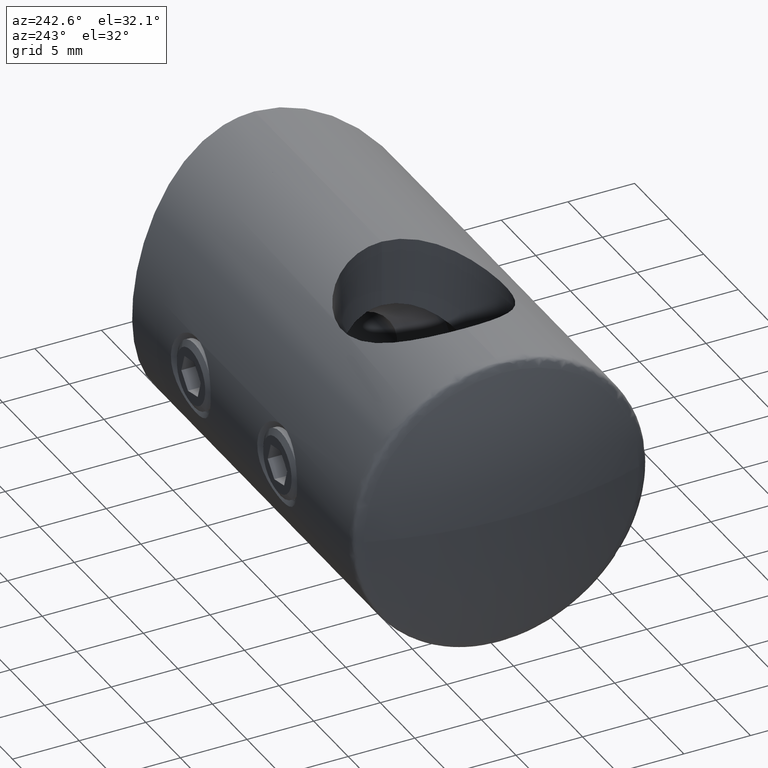
[diagram: clean part render]
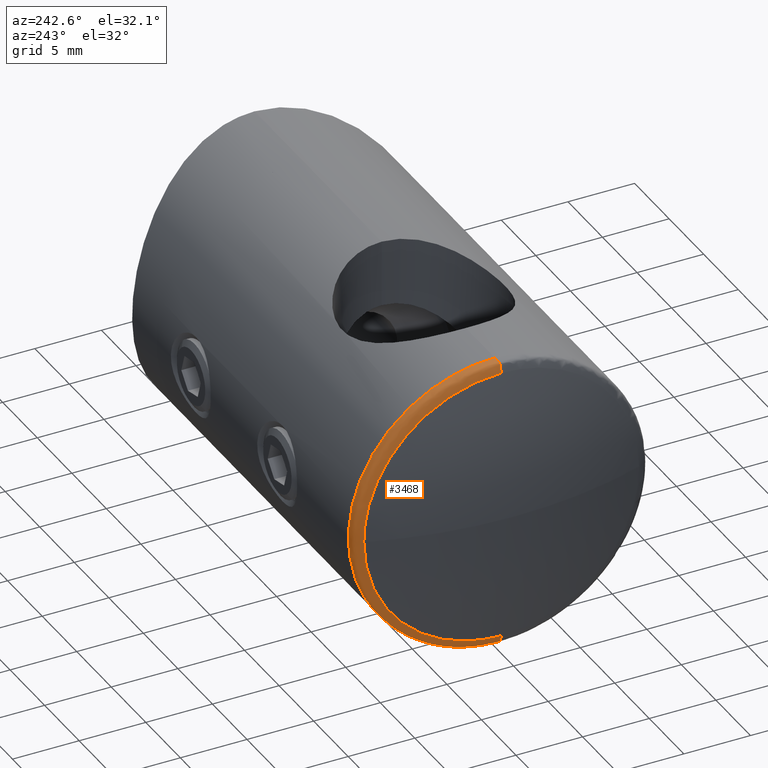
[diagram: same view with one face highlighted and labeled with its STEP entity id]
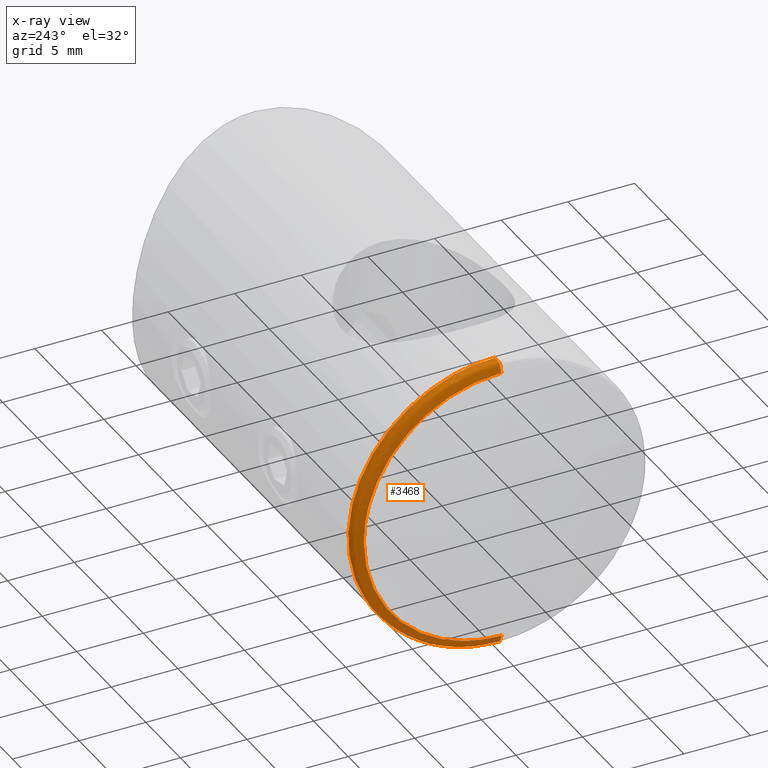
[diagram: x-ray of the same camera — body ghosted, the highlighted face saturated]
A machine part, auxiliary view. The second image highlights one B-rep face of the part: STEP entity #3468.
The next image is the same camera in x-ray: the body ghosted, the highlighted face saturated — about 0% of this face is hidden behind the body in this view.
In plain terms, the highlighted face is a freeform B-spline surface patch.
Its self-contained STEP definition (entity closure, byte-faithful):
#50 =( BOUNDED_CURVE ( )  B_SPLINE_CURVE ( 2, ( #1535, #1948, #4927 ),
 .UNSPECIFIED., .F., .F. ) 
 B_SPLINE_CURVE_WITH_KNOTS ( ( 3, 3 ),
 ( 0.0000000000000000000, 1.000000000000000000 ),
 .UNSPECIFIED. ) 
 CURVE ( )  GEOMETRIC_REPRESENTATION_ITEM ( )  RATIONAL_B_SPLINE_CURVE ( ( 1.000000000000000000, 4.078263282937810700, 1.000000000000000000 ) ) 
 REPRESENTATION_ITEM ( '' )  );
#104 = CARTESIAN_POINT ( 'NONE',  ( 2.700700533988579500, 8.796335264683126100, -6.760013921420911800 ) ) ;
#158 = CARTESIAN_POINT ( 'NONE',  ( 2.700700533988579500, -1.439896630495491700, 10.99999999999999600 ) ) ;
#198 = CARTESIAN_POINT ( 'NONE',  ( 1.756922039244524600, -5.202675414969234200, -9.026718888821436700 ) ) ;
#219 = CARTESIAN_POINT ( 'NONE',  ( 1.756922039244400300, 10.33057851239669000, 1.352269562824467400 ) ) ;
#238 = CARTESIAN_POINT ( 'NONE',  ( 1.991401168373105400, -2.879226730172406200, -10.71369944243128300 ) ) ;
#257 = CARTESIAN_POINT ( 'NONE',  ( 1.991401168373390300, 1.439896630495494100, 11.00000000000000000 ) ) ;
#272 = CARTESIAN_POINT ( 'NONE',  ( 1.991401168373390300, 11.00000000000000000, 1.439896630495493200 ) ) ;
#318 = CARTESIAN_POINT ( 'NONE',  ( 1.756922039244400500, 1.581413738568378900E-015, -10.33057851239669000 ) ) ;
#366 = CARTESIAN_POINT ( 'NONE',  ( 2.700700533988579500, 6.735557395310440100E-016, -10.99999999999999600 ) ) ;
#371 = CARTESIAN_POINT ( 'NONE',  ( 2.700700533988579500, 10.99999999999999800, 1.439896632895321800 ) ) ;
#548 = CARTESIAN_POINT ( 'NONE',  ( 2.700700533988579500, 5.539808781862499900, 9.611650272815303700 ) ) ;
#555 = CARTESIAN_POINT ( 'NONE',  ( 1.756922039244400500, 5.202675417054750900, -9.026718887957201800 ) ) ;
#568 = CARTESIAN_POINT ( 'NONE',  ( 2.700700533988579500, -9.611650272813880800, 5.539808781865938100 ) ) ;
#586 = CARTESIAN_POINT ( 'NONE',  ( 1.991401168372537900, -8.796335264684824300, -6.760013921418077700 ) ) ;
#598 = CARTESIAN_POINT ( 'NONE',  ( 1.756922039244400500, 6.348623140236719000, 8.261021099154751500 ) ) ;
#626 = CARTESIAN_POINT ( 'NONE',  ( 1.991401168373390300, 1.439896630495578700, -11.00000000000000000 ) ) ;
#646 = CARTESIAN_POINT ( 'NONE',  ( 1.756922039244400300, 1.352269562824468800, 10.33057851239669000 ) ) ;
#661 = CARTESIAN_POINT ( 'NONE',  ( 1.756922039244196200, 2.704007071909384900, -10.06170120438812000 ) ) ;
#678 = CARTESIAN_POINT ( 'NONE',  ( 1.756922039244524600, -9.026718888821434900, -5.202675414969237800 ) ) ;
#695 = CARTESIAN_POINT ( 'NONE',  ( 1.756922039244588600, 9.026718888820232300, 5.202675414972618200 ) ) ;
#699 =( BOUNDED_SURFACE ( )  B_SPLINE_SURFACE ( 2, 3, ( 
 ( #1455, #158, #2266, #1880, #1839, #4865, #568, #3555, #3514, #999, #4367, #3536, #3108, #2249, #981, #3164, #4444, #3594, #2325, #1037, #4405, #104, #3982, #1821, #4018, #1473, #1435, #3089, #5244, #960, #548, #4842, #4802, #3942 ),
 ( #1396, #3961, #5221, #4824, #2676, #2288, #1414, #2696, #5263, #3147, #4386, #2717, #586, #3182, #4059, #238, #3653, #626, #3613, #2385, #4038, #2402, #5359, #4953, #5376, #272, #1126, #2808, #3675, #3202, #2824, #3694, #257, #4504 ),
 ( #2773, #1074, #4485, #3240, #1054, #2791, #3223, #4116, #4540, #1991, #1958, #678, #3257, #1565, #198, #4937, #4971, #1110, #661, #2345, #1512, #4098, #1939, #5303, #1544, #219, #4522, #695, #1492, #3633, #2754, #4467, #646, #4918 ) ),
 .UNSPECIFIED., .F., .T., .F. ) 
 B_SPLINE_SURFACE_WITH_KNOTS ( ( 3, 3 ),
 ( 4, 2, 2, 2, 2, 2, 2, 2, 2, 2, 2, 2, 2, 2, 2, 2, 4 ),
 ( 0.0000000000000000000, 1.000000000000000000 ),
 ( -3.141592653589793100, -2.748893571891069000, -2.356194490192344800, -1.963495408493620700, -1.570796326794896600, -1.178097245096172400, -0.7853981633974482800, -0.3926990816987241400, 0.0000000000000000000, 0.3926990816987241400, 0.7853981633974482800, 1.178097245096172400, 1.570796326794896600, 1.963495408493620700, 2.356194490192344800, 2.748893571891069000, 3.141592653589793100 ),
 .UNSPECIFIED. ) 
 GEOMETRIC_REPRESENTATION_ITEM ( )  RATIONAL_B_SPLINE_SURFACE ( (
 ( 1.000000000000000000, 1.000000000000000000, 1.000000000000000000, 1.000000000000000000, 1.000000000000000000, 1.000000000000000000, 1.000000000000000000, 1.000000000000000000, 1.000000000000000000, 1.000000000000000000, 1.000000000000000000, 1.000000000000000000, 1.000000000000000000, 1.000000000000000000, 1.000000000000000000, 1.000000000000000000, 1.000000000000000000, 1.000000000000000000, 1.000000000000000000, 1.000000000000000000, 1.000000000000000000, 1.000000000000000000, 1.000000000000000000, 1.000000000000000000, 1.000000000000000000, 1.000000000000000000, 1.000000000000000000, 1.000000000000000000, 1.000000000000000000, 1.000000000000000000, 1.000000000000000000, 1.000000000000000000, 1.000000000000000000, 1.000000000000000000),
 ( 4.078263282937810700, 4.078263282937810700, 4.078263282937807200, 4.078263282937807200, 4.078263282937810700, 4.078263282937810700, 4.078263282937807200, 4.078263282937807200, 4.078263282937810700, 4.078263282937810700, 4.078263282937810700, 4.078263282937810700, 4.078263282937810700, 4.078263282937810700, 4.078263282937809800, 4.078263282937809800, 4.078263282937810700, 4.078263282937810700, 4.078263282937808900, 4.078263282937808900, 4.078263282937810700, 4.078263282937810700, 4.078263282937809800, 4.078263282937809800, 4.078263282937810700, 4.078263282937810700, 4.078263282937810700, 4.078263282937810700, 4.078263282937809800, 4.078263282937809800, 4.078263282937808000, 4.078263282937808000, 4.078263282937810700, 4.078263282937810700),
 ( 1.000000000000000000, 1.000000000000000000, 1.000000000000000000, 1.000000000000000000, 1.000000000000000000, 1.000000000000000000, 1.000000000000000000, 1.000000000000000000, 1.000000000000000000, 1.000000000000000000, 1.000000000000000000, 1.000000000000000000, 1.000000000000000000, 1.000000000000000000, 1.000000000000000000, 1.000000000000000000, 1.000000000000000000, 1.000000000000000000, 1.000000000000000000, 1.000000000000000000, 1.000000000000000000, 1.000000000000000000, 1.000000000000000000, 1.000000000000000000, 1.000000000000000000, 1.000000000000000000, 1.000000000000000000, 1.000000000000000000, 1.000000000000000000, 1.000000000000000000, 1.000000000000000000, 1.000000000000000000, 1.000000000000000000, 1.000000000000000000) ) ) 
 REPRESENTATION_ITEM ( '' )  SURFACE ( )  );
#721 = ORIENTED_EDGE ( 'NONE', *, *, #5126, .F. ) ;
#762 = CARTESIAN_POINT ( 'NONE',  ( 2.700700533988579900, 10.71369944335146900, 2.879226727952081800 ) ) ;
#860 =( BOUNDED_CURVE ( )  B_SPLINE_CURVE ( 2, ( #3301, #4207, #1193 ),
 .UNSPECIFIED., .F., .T. ) 
 B_SPLINE_CURVE_WITH_KNOTS ( ( 3, 3 ),
 ( 0.0000000000000000000, 1.000000000000000000 ),
 .UNSPECIFIED. ) 
 CURVE ( )  GEOMETRIC_REPRESENTATION_ITEM ( )  RATIONAL_B_SPLINE_CURVE ( ( 1.000000000000000000, 4.078263282937810700, 1.000000000000000000 ) ) 
 REPRESENTATION_ITEM ( '' )  );
#960 = CARTESIAN_POINT ( 'NONE',  ( 2.700700533988579500, 6.760013921421462500, 8.796335264682577200 ) ) ;
#981 = CARTESIAN_POINT ( 'NONE',  ( 2.700700533988579500, -5.539808781859387700, -9.611650272816595100 ) ) ;
#992 = CARTESIAN_POINT ( 'NONE',  ( 1.756922039244400500, 10.06170120525118800, 2.704007069827278500 ) ) ;
#999 = CARTESIAN_POINT ( 'NONE',  ( 2.700700533988579500, -10.99999999999999500, -1.439896630498698200 ) ) ;
#1031 = CARTESIAN_POINT ( 'NONE',  ( 1.756922039244400700, 2.704007069827276200, 10.06170120525118800 ) ) ;
#1037 = CARTESIAN_POINT ( 'NONE',  ( 2.700700533988579500, 5.539808781863098600, -9.611650272815058600 ) ) ;
#1049 = CARTESIAN_POINT ( 'NONE',  ( 1.756922039244400500, 9.026718887957201800, 5.202675417054750000 ) ) ;
#1054 = CARTESIAN_POINT ( 'NONE',  ( 1.756922039244259000, -6.348623141829968100, 8.261021097560933100 ) ) ;
#1074 = CARTESIAN_POINT ( 'NONE',  ( 1.756922039244400300, -1.352269562824466100, 10.33057851239669000 ) ) ;
#1110 = CARTESIAN_POINT ( 'NONE',  ( 1.756922039244400300, 1.352269562824548000, -10.33057851239669000 ) ) ;
#1126 = CARTESIAN_POINT ( 'NONE',  ( 1.991401168373389900, 10.71369944243469200, 2.879226730169576000 ) ) ;
#1149 = ORIENTED_EDGE ( 'NONE', *, *, #1737, .F. ) ;
#1158 = CARTESIAN_POINT ( 'NONE',  ( 2.700700533988579900, 5.539808784079892400, 9.611650271896836600 ) ) ;
#1193 = CARTESIAN_POINT ( 'NONE',  ( 1.756922039244400500, 1.581413738568378900E-015, -10.33057851239669000 ) ) ;
#1232 = CARTESIAN_POINT ( 'NONE',  ( 2.700700533988579000, 8.796335266379978500, -6.760013919724060300 ) ) ;
#1396 = CARTESIAN_POINT ( 'NONE',  ( 1.991401168373390300, 1.347111479062088200E-015, 11.00000000000000000 ) ) ;
#1414 = CARTESIAN_POINT ( 'NONE',  ( 1.991401168373105000, -9.611650272813602000, 5.539808781865822600 ) ) ;
#1435 = CARTESIAN_POINT ( 'NONE',  ( 2.700700533988579500, 10.71369944243304000, 2.879226730169361000 ) ) ;
#1455 = CARTESIAN_POINT ( 'NONE',  ( 2.700700533988579500, 1.347111479062087800E-015, 10.99999999999999600 ) ) ;
#1473 = CARTESIAN_POINT ( 'NONE',  ( 2.700700533988579500, 10.99999999999999600, 1.439896630495493000 ) ) ;
#1476 = EDGE_CURVE ( 'NONE', #5192, #4718, #860, .T. ) ;
#1492 = CARTESIAN_POINT ( 'NONE',  ( 1.756922039244259000, 8.261021097560366400, 6.348623141830538300 ) ) ;
#1512 = CARTESIAN_POINT ( 'NONE',  ( 1.756922039244400000, 6.348623141830111100, -8.261021097561361200 ) ) ;
#1535 = CARTESIAN_POINT ( 'NONE',  ( 2.700700533988579500, -6.735557395310441000E-016, 10.99999999999999600 ) ) ;
#1544 = CARTESIAN_POINT ( 'NONE',  ( 1.756922039244400300, 10.33057851239669000, -1.352269562824468800 ) ) ;
#1565 = CARTESIAN_POINT ( 'NONE',  ( 1.756922039244510200, -6.348623141828340100, -8.261021097563572700 ) ) ;
#1610 = CARTESIAN_POINT ( 'NONE',  ( 2.700700533988579500, 6.760013919724061200, -8.796335266379975000 ) ) ;
#1661 = CARTESIAN_POINT ( 'NONE',  ( 2.700700533988579000, 9.611650271896833100, 5.539808784079891500 ) ) ;
#1737 = EDGE_CURVE ( 'NONE', #2479, #4718, #4317, .T. ) ;
#1821 = CARTESIAN_POINT ( 'NONE',  ( 2.700700533988579500, 10.71369944243287600, -2.879226730169753200 ) ) ;
#1839 = CARTESIAN_POINT ( 'NONE',  ( 2.700700533988579500, -6.760013921420907400, 8.796335264683131400 ) ) ;
#1847 = CARTESIAN_POINT ( 'NONE',  ( 1.756922039244400500, 8.261021099154753200, -6.348623140236719000 ) ) ;
#1880 = CARTESIAN_POINT ( 'NONE',  ( 2.700700533988579500, -5.539808781861667700, 9.611650272815653700 ) ) ;
#1939 = CARTESIAN_POINT ( 'NONE',  ( 1.756922039244520800, 9.026718888820257200, -5.202675414972051500 ) ) ;
#1948 = CARTESIAN_POINT ( 'NONE',  ( 1.991401168373389900, 1.347111479062088200E-015, 10.99999999999999800 ) ) ;
#1958 = CARTESIAN_POINT ( 'NONE',  ( 1.756922039244275300, -10.06170120438695600, -2.704007071912782700 ) ) ;
#1971 = CARTESIAN_POINT ( 'NONE',  ( 1.756922039244400500, 10.33057851239669000, 9.398703391090517800E-016 ) ) ;
#1991 = CARTESIAN_POINT ( 'NONE',  ( 1.756922039244400500, -10.33057851239669000, -1.352269562827477700 ) ) ;
#2005 = CARTESIAN_POINT ( 'NONE',  ( 2.700700533988579500, 6.760013919724062100, 8.796335266379978500 ) ) ;
#2072 = VERTEX_POINT ( 'NONE', #3744 ) ;
#2249 = CARTESIAN_POINT ( 'NONE',  ( 2.700700533988579500, -6.760013921418633700, -8.796335264685403400 ) ) ;
#2255 = CARTESIAN_POINT ( 'NONE',  ( 1.756922039244400500, 10.33057851239669000, 9.398703391090517800E-016 ) ) ;
#2266 = CARTESIAN_POINT ( 'NONE',  ( 2.700700533988579500, -2.879226730170273200, 10.71369944243265800 ) ) ;
#2288 = CARTESIAN_POINT ( 'NONE',  ( 1.991401168372821400, -8.796335264683714100, 6.760013921421464300 ) ) ;
#2325 = CARTESIAN_POINT ( 'NONE',  ( 2.700700533988579500, 2.879226730168871700, -10.71369944243324200 ) ) ;
#2345 = CARTESIAN_POINT ( 'NONE',  ( 1.756922039244604300, 5.202675414972631500, -9.026718888820273200 ) ) ;
#2385 = CARTESIAN_POINT ( 'NONE',  ( 1.991401168373389000, 5.539808781861833800, -9.611650272814744200 ) ) ;
#2402 = CARTESIAN_POINT ( 'NONE',  ( 1.991401168373389900, 8.796335264683129700, -6.760013921420911000 ) ) ;
#2429 = EDGE_CURVE ( 'NONE', #5044, #2479, #2759, .T. ) ;
#2454 = CARTESIAN_POINT ( 'NONE',  ( 2.700700533988579500, -6.735557395310441000E-016, 10.99999999999999600 ) ) ;
#2455 = B_SPLINE_CURVE_WITH_KNOTS ( 'NONE', 3,
 ( #3198, #2927, #3785, #4995, #1610, #1232, #2488, #4211, #3320, #371, #762, #1661, #3722, #2005, #1158, #5424, #3752, #2454 ),
 .UNSPECIFIED., .F., .F.,
 ( 4, 2, 2, 2, 2, 2, 2, 2, 4 ),
 ( 0.5000000000000000000, 0.5625000000000000000, 0.6250000000000000000, 0.6874999999999998900, 0.7499999999999998900, 0.8124999999999998900, 0.8750000000000000000, 0.9375000000000000000, 1.000000000000000000 ),
 .UNSPECIFIED. ) ;
#2479 = VERTEX_POINT ( 'NONE', #1971 ) ;
#2488 = CARTESIAN_POINT ( 'NONE',  ( 2.700700533988579500, 9.611650271896834900, -5.539808784079888900 ) ) ;
#2556 = CARTESIAN_POINT ( 'NONE',  ( 1.756922039244400500, -3.162827477136756300E-016, 10.33057851239669000 ) ) ;
#2676 = CARTESIAN_POINT ( 'NONE',  ( 1.991401168373957000, -6.760013921420338100, 8.796335264682568300 ) ) ;
#2683 = CARTESIAN_POINT ( 'NONE',  ( 1.756922039244400300, 9.026718887957203600, -5.202675417054742000 ) ) ;
#2696 = CARTESIAN_POINT ( 'NONE',  ( 1.991401168373672100, -10.71369944243468600, 2.879226730166179600 ) ) ;
#2717 = CARTESIAN_POINT ( 'NONE',  ( 1.991401168373389900, -9.611650272815875700, -5.539808781858430300 ) ) ;
#2754 = CARTESIAN_POINT ( 'NONE',  ( 1.756922039244533100, 5.202675414972132400, 9.026718888820260700 ) ) ;
#2759 = B_SPLINE_CURVE_WITH_KNOTS ( 'NONE', 3,
 ( #3069, #3627, #1031, #3139, #598, #3588, #1049, #992, #4836, #4012 ),
 .UNSPECIFIED., .F., .F.,
 ( 4, 2, 2, 2, 4 ),
 ( 0.0000000000000000000, 0.06250000000000000000, 0.1250000000000000000, 0.1875000000000000000, 0.2500000000000000000 ),
 .UNSPECIFIED. ) ;
#2773 = CARTESIAN_POINT ( 'NONE',  ( 1.756922039244400300, 1.265130990854703100E-015, 10.33057851239669000 ) ) ;
#2791 = CARTESIAN_POINT ( 'NONE',  ( 1.756922039244541500, -8.261021097561512100, 6.348623141830525900 ) ) ;
#2808 = CARTESIAN_POINT ( 'NONE',  ( 1.991401168373389900, 9.611650272813610800, 5.539808781862406700 ) ) ;
#2824 = CARTESIAN_POINT ( 'NONE',  ( 1.991401168373389000, 5.539808781861732500, 9.611650272814825900 ) ) ;
#2927 = CARTESIAN_POINT ( 'NONE',  ( 2.700700533988579000, 1.439896632895322400, -10.99999999999999500 ) ) ;
#3069 = CARTESIAN_POINT ( 'NONE',  ( 1.756922039244400500, -3.162827477136756300E-016, 10.33057851239669000 ) ) ;
#3087 = ORIENTED_EDGE ( 'NONE', *, *, #4670, .F. ) ;
#3089 = CARTESIAN_POINT ( 'NONE',  ( 2.700700533988579500, 9.611650272815257500, 5.539808781862618000 ) ) ;
#3108 = CARTESIAN_POINT ( 'NONE',  ( 2.700700533988579500, -8.796335264685394500, -6.760013921418646100 ) ) ;
#3117 = CARTESIAN_POINT ( 'NONE',  ( 1.756922039244400300, 6.348623140236723500, -8.261021099154746100 ) ) ;
#3139 = CARTESIAN_POINT ( 'NONE',  ( 1.756922039244400300, 5.202675417054743800, 9.026718887957201800 ) ) ;
#3147 = CARTESIAN_POINT ( 'NONE',  ( 1.991401168373390300, -11.00000000000000000, -1.439896630498699100 ) ) ;
#3153 = CARTESIAN_POINT ( 'NONE',  ( 1.756922039244400500, 1.352269565078253900, -10.33057851239669100 ) ) ;
#3164 = CARTESIAN_POINT ( 'NONE',  ( 2.700700533988579500, -2.879226730172579800, -10.71369944243170600 ) ) ;
#3175 = FACE_OUTER_BOUND ( 'NONE', #4789, .T. ) ;
#3182 = CARTESIAN_POINT ( 'NONE',  ( 1.991401168374240500, -6.760013921419203900, -8.796335264685970000 ) ) ;
#3198 = CARTESIAN_POINT ( 'NONE',  ( 2.700700533988579500, 6.735557395310440100E-016, -10.99999999999999600 ) ) ;
#3202 = CARTESIAN_POINT ( 'NONE',  ( 1.991401168372821000, 6.760013921422030100, 8.796335264683143900 ) ) ;
#3223 = CARTESIAN_POINT ( 'NONE',  ( 1.756922039244601000, -9.026718888819088300, 5.202675414975465700 ) ) ;
#3240 = CARTESIAN_POINT ( 'NONE',  ( 1.756922039244547300, -5.202675414972121700, 9.026718888820312300 ) ) ;
#3257 = CARTESIAN_POINT ( 'NONE',  ( 1.756922039244290400, -8.261021097563119800, -6.348623141827907500 ) ) ;
#3301 = CARTESIAN_POINT ( 'NONE',  ( 2.700700533988579500, 6.735557395310440100E-016, -10.99999999999999600 ) ) ;
#3320 = CARTESIAN_POINT ( 'NONE',  ( 2.700700533988579900, 10.99999999999999600, -1.439896632895319800 ) ) ;
#3468 = ADVANCED_FACE ( 'NONE', ( #3175 ), #699, .T. ) ;
#3483 = CARTESIAN_POINT ( 'NONE',  ( 1.756922039244400500, 10.33057851239669100, -1.352269565078248400 ) ) ;
#3514 = CARTESIAN_POINT ( 'NONE',  ( 2.700700533988579500, -10.99999999999999800, 1.439896630498682400 ) ) ;
#3536 = CARTESIAN_POINT ( 'NONE',  ( 2.700700533988579500, -9.611650272816426400, -5.539808781859792800 ) ) ;
#3543 = CARTESIAN_POINT ( 'NONE',  ( 1.756922039244400500, 2.704007069827279300, -10.06170120525118800 ) ) ;
#3555 = CARTESIAN_POINT ( 'NONE',  ( 2.700700533988579500, -10.71369944243440700, 2.879226730166064100 ) ) ;
#3588 = CARTESIAN_POINT ( 'NONE',  ( 1.756922039244400300, 8.261021099154746100, 6.348623140236722600 ) ) ;
#3594 = CARTESIAN_POINT ( 'NONE',  ( 2.700700533988579500, 1.439896630495578900, -10.99999999999999600 ) ) ;
#3613 = CARTESIAN_POINT ( 'NONE',  ( 1.991401168373389000, 2.879226730170137300, -10.71369944243355800 ) ) ;
#3627 = CARTESIAN_POINT ( 'NONE',  ( 1.756922039244400500, 1.352269565078248800, 10.33057851239669300 ) ) ;
#3633 = CARTESIAN_POINT ( 'NONE',  ( 1.756922039244541500, 6.348623141831094300, 8.261021097560945500 ) ) ;
#3653 = CARTESIAN_POINT ( 'NONE',  ( 1.991401168373390300, -1.439896630495578700, -11.00000000000000000 ) ) ;
#3662 = CARTESIAN_POINT ( 'NONE',  ( 1.756922039244400500, 1.581413738568378900E-015, -10.33057851239669000 ) ) ;
#3675 = CARTESIAN_POINT ( 'NONE',  ( 1.991401168373956500, 8.796335264681996300, 6.760013921420905600 ) ) ;
#3694 = CARTESIAN_POINT ( 'NONE',  ( 1.991401168373389000, 2.879226730170266100, 10.71369944243346100 ) ) ;
#3722 = CARTESIAN_POINT ( 'NONE',  ( 2.700700533988579500, 8.796335266379976800, 6.760013919724059400 ) ) ;
#3744 = CARTESIAN_POINT ( 'NONE',  ( 2.700700533988579500, -6.735557395310441000E-016, 10.99999999999999600 ) ) ;
#3752 = CARTESIAN_POINT ( 'NONE',  ( 2.700700533988579900, 1.439896632895322200, 10.99999999999999600 ) ) ;
#3785 = CARTESIAN_POINT ( 'NONE',  ( 2.700700533988579500, 2.879226727952081800, -10.71369944335146900 ) ) ;
#3942 = CARTESIAN_POINT ( 'NONE',  ( 2.700700533988579500, 1.347111479062087800E-015, 10.99999999999999600 ) ) ;
#3961 = CARTESIAN_POINT ( 'NONE',  ( 1.991401168373390300, -1.439896630495491700, 11.00000000000000000 ) ) ;
#3982 = CARTESIAN_POINT ( 'NONE',  ( 2.700700533988579500, 9.611650272815428100, -5.539808781862208600 ) ) ;
#4012 = CARTESIAN_POINT ( 'NONE',  ( 1.756922039244400500, 10.33057851239669000, 9.398703391090517800E-016 ) ) ;
#4018 = CARTESIAN_POINT ( 'NONE',  ( 2.700700533988579500, 10.99999999999999600, -1.439896630495494300 ) ) ;
#4038 = CARTESIAN_POINT ( 'NONE',  ( 1.991401168373389900, 6.760013921420911000, -8.796335264683129700 ) ) ;
#4057 = ORIENTED_EDGE ( 'NONE', *, *, #1476, .T. ) ;
#4059 = CARTESIAN_POINT ( 'NONE',  ( 1.991401168373671600, -5.539808781859558300, -9.611650272817016100 ) ) ;
#4098 = CARTESIAN_POINT ( 'NONE',  ( 1.756922039244400000, 8.261021097561359400, -6.348623141830112000 ) ) ;
#4116 = CARTESIAN_POINT ( 'NONE',  ( 1.756922039244199300, -10.06170120438929400, 2.704007071906579200 ) ) ;
#4207 = CARTESIAN_POINT ( 'NONE',  ( 1.991401168373389900, 0.0000000000000000000, -10.99999999999999800 ) ) ;
#4211 = CARTESIAN_POINT ( 'NONE',  ( 2.700700533988578600, 10.71369944335146600, -2.879226727952080500 ) ) ;
#4317 = B_SPLINE_CURVE_WITH_KNOTS ( 'NONE', 3,
 ( #2255, #3483, #5230, #2683, #1847, #3117, #555, #3543, #3153, #3662 ),
 .UNSPECIFIED., .F., .F.,
 ( 4, 2, 2, 2, 4 ),
 ( 0.2500000000000000000, 0.3125000000000000000, 0.3750000000000000000, 0.4375000000000000000, 0.5000000000000000000 ),
 .UNSPECIFIED. ) ;
#4367 = CARTESIAN_POINT ( 'NONE',  ( 2.700700533988579500, -10.71369944243187100, -2.879226730172183200 ) ) ;
#4386 = CARTESIAN_POINT ( 'NONE',  ( 1.991401168373389900, -10.71369944243242000, -2.879226730173547900 ) ) ;
#4405 = CARTESIAN_POINT ( 'NONE',  ( 2.700700533988579500, 6.760013921420911000, -8.796335264683127900 ) ) ;
#4444 = CARTESIAN_POINT ( 'NONE',  ( 2.700700533988579500, -1.439896630495578900, -10.99999999999999600 ) ) ;
#4467 = CARTESIAN_POINT ( 'NONE',  ( 1.756922039244267300, 2.704007071909910700, 10.06170120438812400 ) ) ;
#4485 = CARTESIAN_POINT ( 'NONE',  ( 1.756922039244252800, -2.704007071909865900, 10.06170120438809300 ) ) ;
#4504 = CARTESIAN_POINT ( 'NONE',  ( 1.991401168373390300, 1.347111479062088200E-015, 11.00000000000000000 ) ) ;
#4522 = CARTESIAN_POINT ( 'NONE',  ( 1.756922039244211300, 10.06170120438815900, 2.704007071909405800 ) ) ;
#4540 = CARTESIAN_POINT ( 'NONE',  ( 1.756922039244400000, -10.33057851239669000, 1.352269562827463000 ) ) ;
#4670 = EDGE_CURVE ( 'NONE', #5192, #2072, #2455, .T. ) ;
#4718 = VERTEX_POINT ( 'NONE', #318 ) ;
#4749 = ORIENTED_EDGE ( 'NONE', *, *, #2429, .F. ) ;
#4789 = EDGE_LOOP ( 'NONE', ( #3087, #4057, #1149, #4749, #721 ) ) ;
#4802 = CARTESIAN_POINT ( 'NONE',  ( 2.700700533988579500, 1.439896630495494300, 10.99999999999999600 ) ) ;
#4824 = CARTESIAN_POINT ( 'NONE',  ( 1.991401168373388500, -5.539808781862271700, 9.611650272817108500 ) ) ;
#4836 = CARTESIAN_POINT ( 'NONE',  ( 1.756922039244400500, 10.33057851239669100, 1.352269565078253200 ) ) ;
#4842 = CARTESIAN_POINT ( 'NONE',  ( 2.700700533988579500, 2.879226730169502300, 10.71369944243298300 ) ) ;
#4865 = CARTESIAN_POINT ( 'NONE',  ( 2.700700533988579500, -8.796335264683142100, 6.760013921420894100 ) ) ;
#4918 = CARTESIAN_POINT ( 'NONE',  ( 1.756922039244400300, 1.265130990854703100E-015, 10.33057851239669000 ) ) ;
#4927 = CARTESIAN_POINT ( 'NONE',  ( 1.756922039244400500, -3.162827477136756300E-016, 10.33057851239669000 ) ) ;
#4937 = CARTESIAN_POINT ( 'NONE',  ( 1.756922039244275700, -2.704007071912778200, -10.06170120438695800 ) ) ;
#4953 = CARTESIAN_POINT ( 'NONE',  ( 1.991401168373389000, 10.71369944243242300, -2.879226730169565300 ) ) ;
#4971 = CARTESIAN_POINT ( 'NONE',  ( 1.756922039244400300, -1.352269562824548000, -10.33057851239669000 ) ) ;
#4995 = CARTESIAN_POINT ( 'NONE',  ( 2.700700533988579000, 5.539808784079891500, -9.611650271896834900 ) ) ;
#5044 = VERTEX_POINT ( 'NONE', #2556 ) ;
#5126 = EDGE_CURVE ( 'NONE', #2072, #5044, #50, .T. ) ;
#5192 = VERTEX_POINT ( 'NONE', #366 ) ;
#5221 = CARTESIAN_POINT ( 'NONE',  ( 1.991401168373388500, -2.879226730169670100, 10.71369944243120100 ) ) ;
#5230 = CARTESIAN_POINT ( 'NONE',  ( 1.756922039244400700, 10.06170120525119000, -2.704007069827276200 ) ) ;
#5244 = CARTESIAN_POINT ( 'NONE',  ( 2.700700533988579500, 8.796335264682564800, 6.760013921421475800 ) ) ;
#5263 = CARTESIAN_POINT ( 'NONE',  ( 1.991401168373390300, -11.00000000000000000, 1.439896630498682900 ) ) ;
#5303 = CARTESIAN_POINT ( 'NONE',  ( 1.756922039244279700, 10.06170120438814100, -2.704007071909956900 ) ) ;
#5359 = CARTESIAN_POINT ( 'NONE',  ( 1.991401168373389000, 9.611650272815879200, -5.539808781862394200 ) ) ;
#5376 = CARTESIAN_POINT ( 'NONE',  ( 1.991401168373390300, 11.00000000000000000, -1.439896630495495200 ) ) ;
#5424 = CARTESIAN_POINT ( 'NONE',  ( 2.700700533988579000, 2.879226727952080500, 10.71369944335146900 ) ) ;